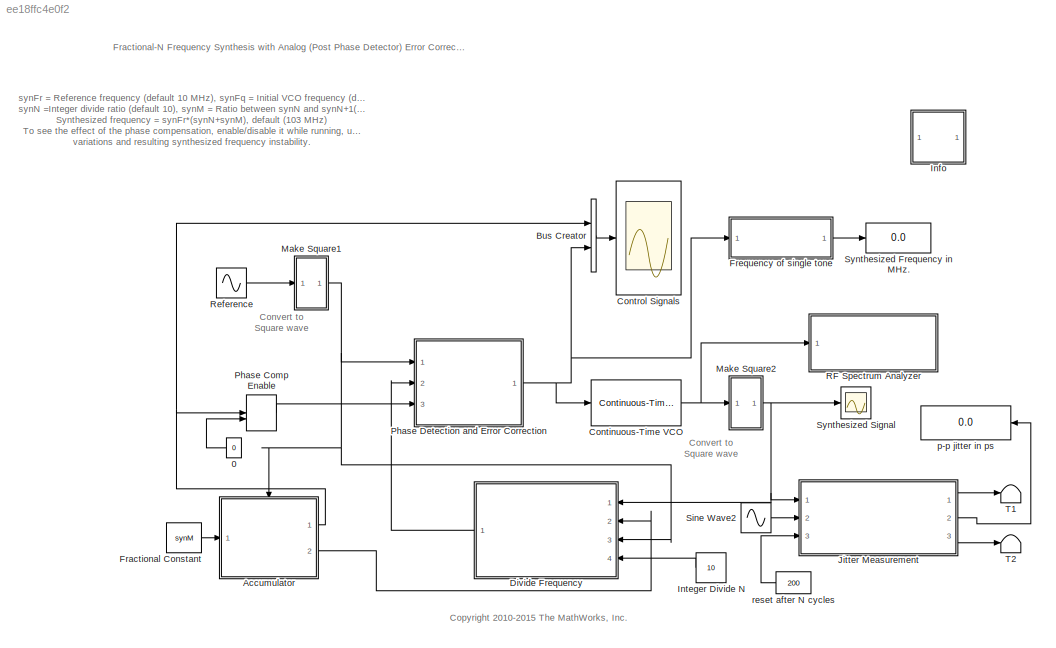
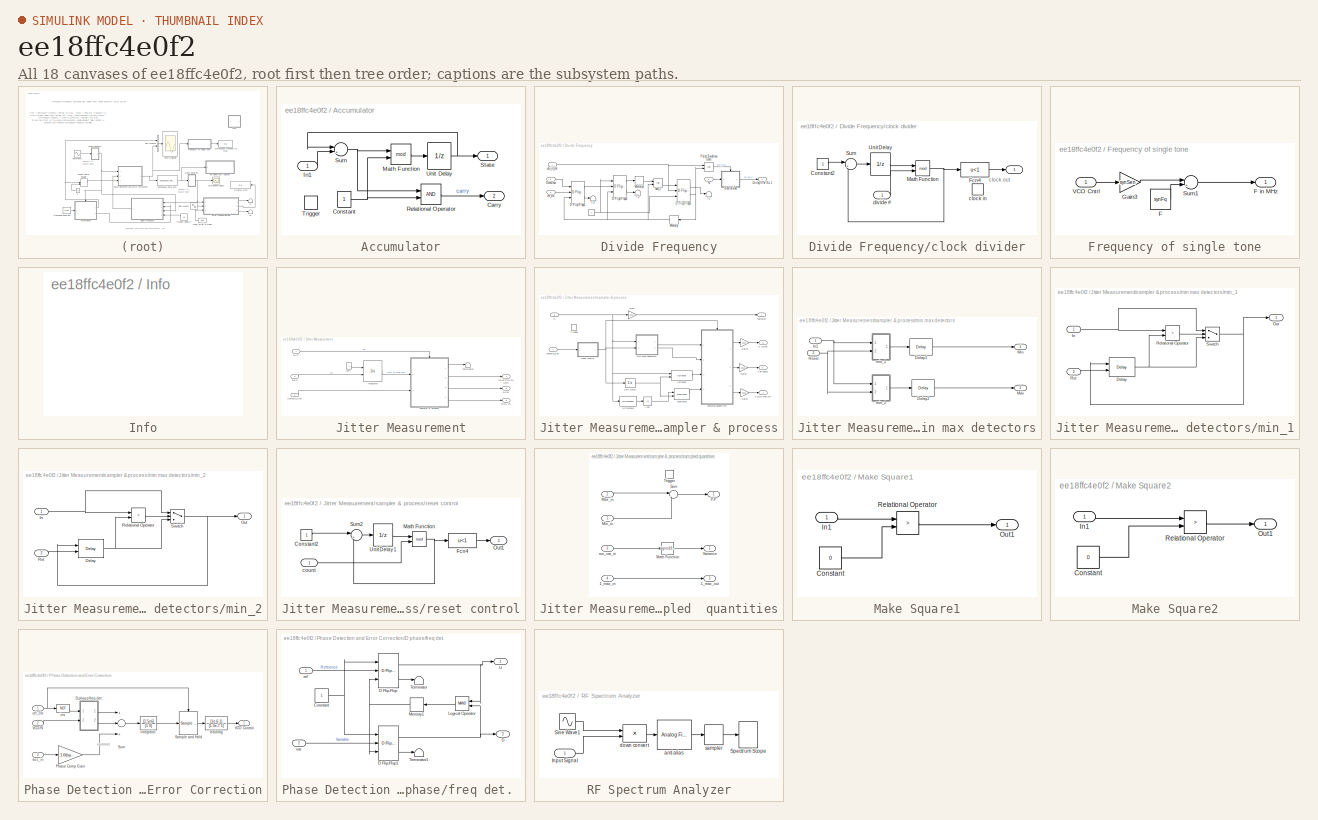
[diagram: thumbnail index - all 18 canvases of the model, root first then tree order]
MODEL slx_ee18ffc4e0f2
KIND model
CONFIG AbsTol = 1e-4
CONFIG EnableMultiTasking = on
CONFIG FixedStep = 0.001/(2.56*2*synFr)
CONFIG MaxStep = 1/(25*synFr*synN)
CONFIG MinStep = auto
CONFIG PreLoadFcn = synFr=10e6; % Reference frequency\nsynFq=90e6; % VCO quiescent frequency\nsynSen=10e6; % VCO sensitivity\nsynN=10; % Fractional factor\nsynM=.3; % Fractional factor\n\n\n\n
CONFIG RelTol = 1e-5
CONFIG SampleTimeConstraint = Unconstrained
CONFIG Solver = ode45
CONFIG SolverName = ode45
CONFIG StartTime = 0.0
CONFIG StopTime = 1.6e-5
BLOCK [Constant] 0
  Value = 0
BLOCK [SubSystem] Accumulator
  Ports = [1, 2, 0, 1]
  RequestExecContextInheritance = off
  TreatAsAtomicUnit = on
BLOCK [Outport] Accumulator/Carry
  IconDisplay = Port number
  Port = 2
BLOCK [Constant] Accumulator/Constant
BLOCK [Inport] Accumulator/In1
  IconDisplay = Port number
BLOCK [Math] Accumulator/Math Function
  Operator = mod
  Ports = [2, 1]
BLOCK [RelationalOperator] Accumulator/Relational Operator
  Ports = [2, 1]
BLOCK [Outport] Accumulator/State
  IconDisplay = Port number
  InitialOutput = 0
BLOCK [Sum] Accumulator/Sum
  IconShape = round
  Inputs = |++
  Ports = [2, 1]
BLOCK [TriggerPort] Accumulator/Trigger
  Ports = []
  VariantControl = (inherit)
BLOCK [UnitDelay] Accumulator/Unit Delay
  SampleTime = -1
BLOCK [BusCreator] Bus Creator
  DisplayOption = bar
  InheritFromInputs = on
  Inputs = 2
  Ports = [2, 1]
BLOCK [Reference] Continuous-Time VCO  REF=commsynccomp2/Continuous-Time
VCO
  Ports = [1, 1]
  SourceBlock = commsynccomp2/Continuous-Time\nVCO
  SourceProductBaseCode = CM
  SourceProductName = Communications System Toolbox
  SourceType = Continuous-Time VCO
BLOCK [Scope] Control Signals
  Floating = off
  NumInputPorts = 1
  Ports = [1]
  ScopeSpecificationString = Simulink.scopes.TimeScopeBlockCfg('CurrentConfiguration', extmgr.ConfigurationSet(extmgr.Configuration('Core','General UI',true,'FigureColor',[1 1 1]),extmgr.Configuration('Core','Source UI',true),extmgr.Configuration('Sources','WiredSimulink',true,'DataLoggingVariableName','ScopeData1','DataLoggingSaveFormat','Array','DataLoggingMaxPoints','60000','DataLoggingLimitDataPoints',true,'DataLoggingDec...<+1858ch>
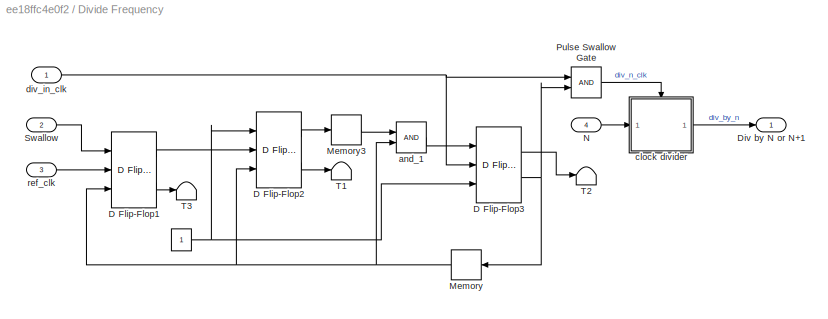
BLOCK [SubSystem] Divide Frequency
  Ports = [4, 1]
  RequestExecContextInheritance = off
BLOCK [Constant] Divide Frequency/ 
BLOCK [Reference] Divide Frequency/D Flip-Flop1  REF=simulink_extras/Flip Flops/D Flip-Flop
  Ports = [3, 2]
  SourceBlock = simulink_extras/Flip Flops/D Flip-Flop
  SourceProductBaseCode = SL
  SourceProductName = Simulink
  SourceType = DFlipFlop
BLOCK [Reference] Divide Frequency/D Flip-Flop2  REF=simulink_extras/Flip Flops/D Flip-Flop
  Ports = [3, 2]
  SourceBlock = simulink_extras/Flip Flops/D Flip-Flop
  SourceProductBaseCode = SL
  SourceProductName = Simulink
  SourceType = DFlipFlop
BLOCK [Reference] Divide Frequency/D Flip-Flop3  REF=simulink_extras/Flip Flops/D Flip-Flop
  Ports = [3, 2]
  SourceBlock = simulink_extras/Flip Flops/D Flip-Flop
  SourceProductBaseCode = SL
  SourceProductName = Simulink
  SourceType = DFlipFlop
BLOCK [Outport] Divide Frequency/Div by N or N+1
  IconDisplay = Port number
BLOCK [Memory] Divide Frequency/Memory
BLOCK [Memory] Divide Frequency/Memory3
BLOCK [Inport] Divide Frequency/N
  IconDisplay = Port number
  Port = 4
BLOCK [Logic] Divide Frequency/Pulse Swallow Gate
  Ports = [2, 1]
BLOCK [Inport] Divide Frequency/Swallow
  IconDisplay = Port number
  Port = 2
BLOCK [Terminator] Divide Frequency/T1
BLOCK [Terminator] Divide Frequency/T2
BLOCK [Terminator] Divide Frequency/T3
BLOCK [Logic] Divide Frequency/and_1
  Ports = [2, 1]
BLOCK [SubSystem] Divide Frequency/clock divider
  Ports = [1, 1, 0, 1]
  RequestExecContextInheritance = off
  TreatAsAtomicUnit = on
BLOCK [Outport] Divide Frequency/clock divider/ 
  IconDisplay = Port number
BLOCK [Constant] Divide Frequency/clock divider/Constant2
BLOCK [Fcn] Divide Frequency/clock divider/Fcn4
  Expr = u<1
BLOCK [Math] Divide Frequency/clock divider/Math Function
  Operator = mod
  Ports = [2, 1]
BLOCK [Sum] Divide Frequency/clock divider/Sum
  IconShape = round
  Inputs = |++
  Ports = [2, 1]
BLOCK [UnitDelay] Divide Frequency/clock divider/Unit Delay
  SampleTime = -1
BLOCK [TriggerPort] Divide Frequency/clock divider/clock in
  Ports = []
  VariantControl = (inherit)
BLOCK [Inport] Divide Frequency/clock divider/divide # 
  IconDisplay = Port number
BLOCK [Inport] Divide Frequency/div_in_clk
  IconDisplay = Port number
BLOCK [Inport] Divide Frequency/ref_clk
  IconDisplay = Port number
  Port = 3
BLOCK [Constant] Fractional Constant
  Value = synM
BLOCK [SubSystem] Frequency of single tone
  Ports = [1, 1]
  RequestExecContextInheritance = off
BLOCK [Constant] Frequency of single tone/F
  Value = synFq
BLOCK [Outport] Frequency of single tone/F in MHz
  IconDisplay = Port number
BLOCK [Gain] Frequency of single tone/Gain3
  Gain = synSen
BLOCK [Sum] Frequency of single tone/Sum1
  IconShape = round
  Inputs = |++
  Ports = [2, 1]
BLOCK [Inport] Frequency of single tone/VCO Cntrl
  IconDisplay = Port number
BLOCK [SubSystem] Info
  OpenFcn = web(commdhelp, '-helpbrowser');
  Ports = []
  RequestExecContextInheritance = off
BLOCK [Constant] Integer Divide N
  Value = 10
BLOCK [SubSystem] Jitter Measurement
  Ports = [3, 3]
  RequestExecContextInheritance = off
BLOCK [Inport] Jitter Measurement/DUT
  IconDisplay = Port number
BLOCK [Integrator] Jitter Measurement/Integrator
  ExternalReset = rising
  Ports = [2, 1]
BLOCK [Inport] Jitter Measurement/REF
  IconDisplay = Port number
  Port = 2
BLOCK [Outport] Jitter Measurement/RMS ps
  IconDisplay = Port number
  Port = 3
BLOCK [Inport] Jitter Measurement/Sample_Size
  IconDisplay = Port number
  Port = 3
BLOCK [Terminator] Jitter Measurement/Terminator
BLOCK [Outport] Jitter Measurement/p-p ps
  IconDisplay = Port number
  Port = 2
BLOCK [Outport] Jitter Measurement/p-p ps  cycle to cycle
  IconDisplay = Port number
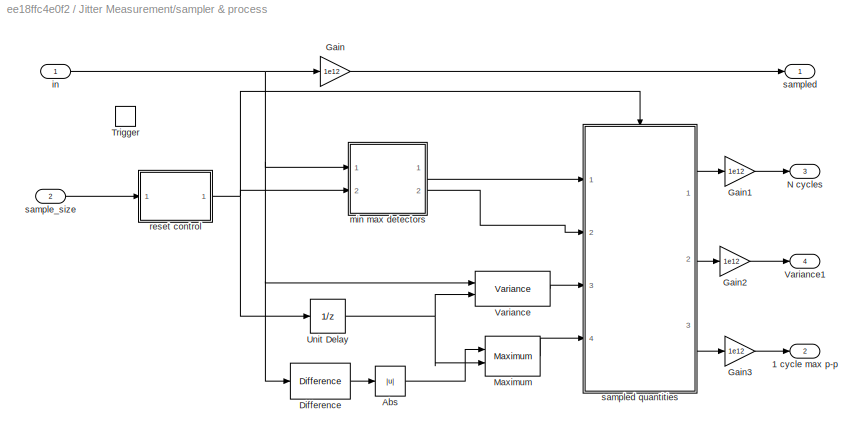
BLOCK [SubSystem] Jitter Measurement/sampler & process
  Ports = [2, 4, 0, 1]
  RequestExecContextInheritance = off
  TreatAsAtomicUnit = on
BLOCK [Outport] Jitter Measurement/sampler & process/1 cycle max p-p
  IconDisplay = Port number
  Port = 2
BLOCK [Abs] Jitter Measurement/sampler & process/Abs
  SaturateOnIntegerOverflow = off
BLOCK [Reference] Jitter Measurement/sampler & process/Difference  REF=simulink/Discrete/Difference
  Ports = [1, 1]
  SourceBlock = simulink/Discrete/Difference
  SourceProductBaseCode = SL
  SourceProductName = Simulink
  SourceType = Difference
BLOCK [Gain] Jitter Measurement/sampler & process/Gain
  Gain = 1e12
  OutDataTypeStr = Inherit: Inherit via internal rule
  ParamDataTypeStr = Inherit: Inherit via internal rule
  SaturateOnIntegerOverflow = off
BLOCK [Gain] Jitter Measurement/sampler & process/Gain1
  Gain = 1e12
  OutDataTypeStr = Inherit: Inherit via internal rule
  ParamDataTypeStr = Inherit: Inherit via internal rule
  SaturateOnIntegerOverflow = off
BLOCK [Gain] Jitter Measurement/sampler & process/Gain2
  Gain = 1e12
  OutDataTypeStr = Inherit: Inherit via internal rule
  ParamDataTypeStr = Inherit: Inherit via internal rule
  SaturateOnIntegerOverflow = off
BLOCK [Gain] Jitter Measurement/sampler & process/Gain3
  Gain = 1e12
  OutDataTypeStr = Inherit: Inherit via internal rule
  ParamDataTypeStr = Inherit: Inherit via internal rule
  SaturateOnIntegerOverflow = off
BLOCK [Reference] Jitter Measurement/sampler & process/Maximum  REF=dspstat3/Maximum
  Ports = [2, 1]
  SourceBlock = dspstat3/Maximum
  SourceProductBaseCode = DS
  SourceProductName = DSP System Toolbox
  SourceType = Maximum
  UserDataPersistent = on
BLOCK [Outport] Jitter Measurement/sampler & process/N cycles
  IconDisplay = Port number
  Port = 3
BLOCK [TriggerPort] Jitter Measurement/sampler & process/Trigger
  Ports = []
  VariantControl = (inherit)
BLOCK [UnitDelay] Jitter Measurement/sampler & process/Unit Delay
  SampleTime = -1
BLOCK [Reference] Jitter Measurement/sampler & process/Variance  REF=dspstat3/Variance
  Ports = [2, 1]
  SourceBlock = dspstat3/Variance
  SourceProductBaseCode = DS
  SourceProductName = DSP System Toolbox
  SourceType = Variance
  UserDataPersistent = on
BLOCK [Outport] Jitter Measurement/sampler & process/Variance1
  IconDisplay = Port number
  Port = 4
BLOCK [Inport] Jitter Measurement/sampler & process/in
  IconDisplay = Port number
BLOCK [SubSystem] Jitter Measurement/sampler & process/min max detectors
  Ports = [2, 2]
  RequestExecContextInheritance = off
BLOCK [Delay] Jitter Measurement/sampler & process/min max detectors/Delay1
  DelayLength = 1
  InitialCondition = 0
  InputPortMap = u0
  Ports = [1, 1]
  UseCircularBuffer = on
  UserDataPersistent = on
BLOCK [Delay] Jitter Measurement/sampler & process/min max detectors/Delay2
  DelayLength = 1
  InitialCondition = 0
  InputPortMap = u0
  Ports = [1, 1]
  UseCircularBuffer = on
  UserDataPersistent = on
BLOCK [Inport] Jitter Measurement/sampler & process/min max detectors/In1
  IconDisplay = Port number
BLOCK [Outport] Jitter Measurement/sampler & process/min max detectors/Max
  IconDisplay = Port number
  Port = 2
BLOCK [Outport] Jitter Measurement/sampler & process/min max detectors/Min
  IconDisplay = Port number
BLOCK [Inport] Jitter Measurement/sampler & process/min max detectors/Reset
  IconDisplay = Port number
  Port = 2
BLOCK [SubSystem] Jitter Measurement/sampler & process/min max detectors/min_1
  Ports = [2, 1]
  RequestExecContextInheritance = off
BLOCK [Reference] Jitter Measurement/sampler & process/min max detectors/min_1/Delay  REF=dspobslib/Delay
  Ports = [2, 1]
  SourceBlock = dspobslib/Delay
  SourceProductBaseCode = DS
  SourceProductName = DSP System Toolbox
  SourceType = Delay
  UserDataPersistent = on
BLOCK [Inport] Jitter Measurement/sampler & process/min max detectors/min_1/In
  IconDisplay = Port number
BLOCK [Outport] Jitter Measurement/sampler & process/min max detectors/min_1/Out
  IconDisplay = Port number
BLOCK [RelationalOperator] Jitter Measurement/sampler & process/min max detectors/min_1/Relational Operator
  InputSameDT = off
  Operator = <
  OutDataTypeStr = boolean
  Ports = [2, 1]
BLOCK [Inport] Jitter Measurement/sampler & process/min max detectors/min_1/Rst
  IconDisplay = Port number
  Port = 2
BLOCK [Switch] Jitter Measurement/sampler & process/min max detectors/min_1/Switch
  InputSameDT = off
  SaturateOnIntegerOverflow = off
  Threshold = .5
BLOCK [SubSystem] Jitter Measurement/sampler & process/min max detectors/min_2
  Ports = [2, 1]
  RequestExecContextInheritance = off
BLOCK [Reference] Jitter Measurement/sampler & process/min max detectors/min_2/Delay  REF=dspobslib/Delay
  Ports = [2, 1]
  SourceBlock = dspobslib/Delay
  SourceProductBaseCode = DS
  SourceProductName = DSP System Toolbox
  SourceType = Delay
  UserDataPersistent = on
BLOCK [Inport] Jitter Measurement/sampler & process/min max detectors/min_2/In
  IconDisplay = Port number
BLOCK [Outport] Jitter Measurement/sampler & process/min max detectors/min_2/Out
  IconDisplay = Port number
BLOCK [RelationalOperator] Jitter Measurement/sampler & process/min max detectors/min_2/Relational Operator
  InputSameDT = off
  Operator = >
  OutDataTypeStr = boolean
  Ports = [2, 1]
BLOCK [Inport] Jitter Measurement/sampler & process/min max detectors/min_2/Rst
  IconDisplay = Port number
  Port = 2
BLOCK [Switch] Jitter Measurement/sampler & process/min max detectors/min_2/Switch
  InputSameDT = off
  SaturateOnIntegerOverflow = off
  Threshold = .5
BLOCK [SubSystem] Jitter Measurement/sampler & process/reset control
  Ports = [1, 1]
  RequestExecContextInheritance = off
BLOCK [Constant] Jitter Measurement/sampler & process/reset control/Constant2
BLOCK [Fcn] Jitter Measurement/sampler & process/reset control/Fcn4
  Expr = u<1
BLOCK [Math] Jitter Measurement/sampler & process/reset control/Math Function
  Operator = mod
  Ports = [2, 1]
BLOCK [Outport] Jitter Measurement/sampler & process/reset control/Out1
  IconDisplay = Port number
BLOCK [Sum] Jitter Measurement/sampler & process/reset control/Sum2
  IconShape = round
  Inputs = |++
  Ports = [2, 1]
BLOCK [UnitDelay] Jitter Measurement/sampler & process/reset control/Unit Delay1
  SampleTime = -1
BLOCK [Inport] Jitter Measurement/sampler & process/reset control/count
  IconDisplay = Port number
BLOCK [Inport] Jitter Measurement/sampler & process/sample_size
  IconDisplay = Port number
  Port = 2
BLOCK [Outport] Jitter Measurement/sampler & process/sampled
  IconDisplay = Port number
BLOCK [SubSystem] Jitter Measurement/sampler & process/sampled  quantities
  Ports = [4, 3, 0, 1]
  RequestExecContextInheritance = off
  TreatAsAtomicUnit = on
BLOCK [Inport] Jitter Measurement/sampler & process/sampled  quantities/1_max_in
  IconDisplay = Port number
  Port = 4
BLOCK [Outport] Jitter Measurement/sampler & process/sampled  quantities/1_max_out
  IconDisplay = Port number
  Port = 3
BLOCK [Sqrt] Jitter Measurement/sampler & process/sampled  quantities/Math Function
  AlgorithmType = Newton-Raphson
  Operator = signedSqrt
BLOCK [Inport] Jitter Measurement/sampler & process/sampled  quantities/Max_in
  IconDisplay = Port number
  Port = 2
BLOCK [Inport] Jitter Measurement/sampler & process/sampled  quantities/Min_in
  IconDisplay = Port number
BLOCK [Outport] Jitter Measurement/sampler & process/sampled  quantities/P-P
  IconDisplay = Port number
BLOCK [Sum] Jitter Measurement/sampler & process/sampled  quantities/Sum
  IconShape = round
  Inputs = |+-
  Ports = [2, 1]
BLOCK [TriggerPort] Jitter Measurement/sampler & process/sampled  quantities/Trigger
  Ports = []
  VariantControl = (inherit)
BLOCK [Outport] Jitter Measurement/sampler & process/sampled  quantities/Variance
  IconDisplay = Port number
  Port = 2
BLOCK [Inport] Jitter Measurement/sampler & process/sampled  quantities/run_var_in
  IconDisplay = Port number
  Port = 3
BLOCK [Constant] Jitter Measurement/unity
  OutDataTypeStr = double
BLOCK [SubSystem] Make Square1
  Ports = [1, 1]
  RequestExecContextInheritance = off
BLOCK [Constant] Make Square1/Constant
  Value = 0
BLOCK [Inport] Make Square1/In1
  IconDisplay = Port number
BLOCK [Outport] Make Square1/Out1
  IconDisplay = Port number
BLOCK [RelationalOperator] Make Square1/Relational Operator
  Operator = >
  Ports = [2, 1]
BLOCK [SubSystem] Make Square2
  Ports = [1, 1]
  RequestExecContextInheritance = off
BLOCK [Constant] Make Square2/Constant
  Value = 0
BLOCK [Inport] Make Square2/In1
  IconDisplay = Port number
BLOCK [Outport] Make Square2/Out1
  IconDisplay = Port number
BLOCK [RelationalOperator] Make Square2/Relational Operator
  Operator = >
  Ports = [2, 1]
BLOCK [ManualSwitch] Phase Comp Enable
BLOCK [SubSystem] Phase Detection and Error Correction
  Ports = [3, 1]
  RequestExecContextInheritance = off
BLOCK [SubSystem] Phase Detection and Error Correction/D phase//freq det. 
  Ports = [2, 2]
  RequestExecContextInheritance = off
BLOCK [Constant] Phase Detection and Error Correction/D phase//freq det. /Constant
BLOCK [Outport] Phase Detection and Error Correction/D phase//freq det. /D
  IconDisplay = Port number
  Port = 2
BLOCK [Reference] Phase Detection and Error Correction/D phase//freq det. /D Flip-Flop  REF=simulink_extras/Flip Flops/D Flip-Flop
  Ports = [3, 2]
  SourceBlock = simulink_extras/Flip Flops/D Flip-Flop
  SourceProductBaseCode = SL
  SourceProductName = Simulink
  SourceType = DFlipFlop
BLOCK [Reference] Phase Detection and Error Correction/D phase//freq det. /D Flip-Flop1  REF=simulink_extras/Flip Flops/D Flip-Flop
  Ports = [3, 2]
  SourceBlock = simulink_extras/Flip Flops/D Flip-Flop
  SourceProductBaseCode = SL
  SourceProductName = Simulink
  SourceType = DFlipFlop
BLOCK [Logic] Phase Detection and Error Correction/D phase//freq det. /Logical Operator
  Operator = NAND
  Ports = [2, 1]
BLOCK [Memory] Phase Detection and Error Correction/D phase//freq det. /Memory1
BLOCK [Terminator] Phase Detection and Error Correction/D phase//freq det. /Terminator
BLOCK [Terminator] Phase Detection and Error Correction/D phase//freq det. /Terminator1
BLOCK [Outport] Phase Detection and Error Correction/D phase//freq det. /U
  IconDisplay = Port number
BLOCK [Inport] Phase Detection and Error Correction/D phase//freq det. /ref
  IconDisplay = Port number
BLOCK [Inport] Phase Detection and Error Correction/D phase//freq det. /var
  IconDisplay = Port number
  Port = 2
BLOCK [Gain] Phase Detection and Error Correction/Phase Comp Gain
  Gain = 1.0/(synM+synN)
BLOCK [Reference] Phase Detection and Error Correction/Sample and Hold  REF=dspsigops/Sample
and Hold
  Ports = [1, 1, 0, 1]
  SourceBlock = dspsigops/Sample\nand Hold
  SourceProductBaseCode = DS
  SourceProductName = DSP System Toolbox
  SourceType = Sample and Hold
BLOCK [Sum] Phase Detection and Error Correction/Sum
  Inputs = +-+
  Ports = [3, 1]
BLOCK [Outport] Phase Detection and Error Correction/VCO Control
  IconDisplay = Port number
BLOCK [Inport] Phase Detection and Error Correction/VCO//N
  IconDisplay = Port number
  Port = 2
BLOCK [Inport] Phase Detection and Error Correction/acc_in 
  IconDisplay = Port number
  Port = 3
BLOCK [TransferFcn] Phase Detection and Error Correction/integrator
  Denominator = [1 0]
  Numerator = [2.5e6]
BLOCK [Logic] Phase Detection and Error Correction/inv
  Operator = NOT
  Ports = [1, 1]
BLOCK [TransferFcn] Phase Detection and Error Correction/lead//lag
  Denominator = [1.3e-7 1]
  Numerator = [1e-6 1]
BLOCK [Inport] Phase Detection and Error Correction/ref_clk
  IconDisplay = Port number
BLOCK [SubSystem] RF Spectrum Analyzer
  Description = Spectrum Analyzer
  Ports = [1]
  RequestExecContextInheritance = off
BLOCK [Inport] RF Spectrum Analyzer/Input Signal
  IconDisplay = Port number
BLOCK [Sin] RF Spectrum Analyzer/Sine Wave1
  Amplitude = 1/3.6
  Frequency = 2*pi*(Fc-BW/2)
  Phase = -pi/2
  Ports = [0, 1]
  SampleTime = 0
BLOCK [SpectrumAnalyzer] RF Spectrum Analyzer/Spectrum Scope
  Ports = [1]
  ScopeSpecificationString = spbscopes.SpectrumAnalyzerBlockCfg('CurrentConfiguration', extmgr.ConfigurationSet(extmgr.Configuration('Core','General UI',true,'FigureColor',[1 1 1]),extmgr.Configuration('Core','Source UI',true),extmgr.Configuration('Sources','WiredSimulink',true),extmgr.Configuration('Visuals','Spectrum',true,'AxesProperties',struct('Color',{[1 1 1],[1 1 1]},'XColor',{[0 0 0],[0 0 0]},'YColor',{[0 0 0],[0 0 0]...<+2062ch>
BLOCK [Reference] RF Spectrum Analyzer/anti alias  REF=dsparch4/Analog
Filter Design
  Ports = [1, 1]
  SourceBlock = dsparch4/Analog\nFilter Design
  SourceProductBaseCode = DS
  SourceProductName = DSP System Toolbox
  SourceType = Analog Filter Design
BLOCK [Product] RF Spectrum Analyzer/down convert
  Ports = [2, 1]
  RndMeth = Floor
BLOCK [ZeroOrderHold] RF Spectrum Analyzer/sampler
  SampleTime = 1/(2.56*BW)
BLOCK [Sin] Reference
  Frequency = 2*pi*synFr
  Phase = pi
  Ports = [0, 1]
  SampleTime = 0
BLOCK [Sin] Sine Wave2
  Frequency = 2*pi*synFr*(synN+synM)
  Ports = [0, 1]
  SampleTime = 0
BLOCK [Display] Synthesized Frequency in MHz.
  Decimation = 401
  Ports = [1]
BLOCK [Scope] Synthesized Signal
  Floating = off
  NumInputPorts = 1
  Ports = [1]
  ScopeSpecificationString = Simulink.scopes.TimeScopeBlockCfg('CurrentConfiguration', extmgr.ConfigurationSet(extmgr.Configuration('Core','General UI',true,'FigureColor',[1 1 1]),extmgr.Configuration('Core','Source UI',true),extmgr.Configuration('Sources','WiredSimulink',true,'DataLoggingSaveFormat','Array','DataLoggingMaxPoints','500','DataLoggingLimitDataPoints',true,'DataLoggingDecimation','1'),extmgr.Configuration('Visua...<+1904ch>
BLOCK [Terminator] T1
BLOCK [Terminator] T2
BLOCK [Display] p-p jitter in ps
  Decimation = 1
  Ports = [1]
BLOCK [Constant] reset after N cycles
  Value = 200
  VectorParams1D = off
ANNOTATION (root): Convert to Square wave
ANNOTATION (root): <copyright redacted>
ANNOTATION (root): Fractional-N Frequency Synthesis with Analog (Post Phase Detector) Error Correction
ANNOTATION (root): synFr = Reference frequency (default 10 MHz), synFq = Initial VCO frequency (default 90 MHz) synN =Integer divide ratio (default 10), synM = Ratio between synN and synN+1(default 0.3) , Synthesized frequency = synFr*(synN+synM), default (103 MHz) To see the effect of the phase compensation, enable/disable it while running, using the manual switch, and note the VCO control variations and resulting ...<+34ch>
ANNOTATION Divide Frequency/clock divider: clock out
ANNOTATION Phase Detection and Error Correction: summer
LINE 0:1 -> Phase Comp Enable:2
NET Accumulator/Constant:1 -> Accumulator/Math Function:2, Accumulator/Relational Operator:2
LINE Accumulator/In1:1 -> Accumulator/Sum:2
LINE Accumulator/Math Function:1 -> Accumulator/Unit Delay:1
LINE Accumulator/Relational Operator:1 -> Accumulator/Carry:1
NET Accumulator/Sum:1 -> Accumulator/Math Function:1, Accumulator/Relational Operator:1
NET Accumulator/Unit Delay:1 -> Accumulator/State:1, Accumulator/Sum:1
NET Accumulator:1 -> Bus Creator:1, Phase Comp Enable:1
LINE Accumulator:2 -> Divide Frequency:2
LINE Bus Creator:1 -> Control Signals:1
NET Continuous-Time VCO:1 -> Make Square2:1, RF Spectrum Analyzer:1
NET Divide Frequency/ :1 -> Divide Frequency/D Flip-Flop2:1, Divide Frequency/D Flip-Flop3:3
LINE Divide Frequency/D Flip-Flop1:1 -> Divide Frequency/D Flip-Flop2:2
LINE Divide Frequency/D Flip-Flop1:2 -> Divide Frequency/T3:1
LINE Divide Frequency/D Flip-Flop2:1 -> Divide Frequency/Memory3:1
LINE Divide Frequency/D Flip-Flop2:2 -> Divide Frequency/T1:1
LINE Divide Frequency/D Flip-Flop3:1 -> Divide Frequency/T2:1
NET Divide Frequency/D Flip-Flop3:2 -> Divide Frequency/Memory:1, Divide Frequency/Pulse Swallow Gate:2
LINE Divide Frequency/Memory3:1 -> Divide Frequency/and_1:1
NET Divide Frequency/Memory:1 -> Divide Frequency/D Flip-Flop1:3, Divide Frequency/D Flip-Flop2:3, Divide Frequency/and_1:2
LINE Divide Frequency/N:1 -> Divide Frequency/clock divider:1
LINE Divide Frequency/Pulse Swallow Gate:1 -> Divide Frequency/clock divider:trigger
LINE Divide Frequency/Swallow:1 -> Divide Frequency/D Flip-Flop1:1
LINE Divide Frequency/and_1:1 -> Divide Frequency/D Flip-Flop3:1
LINE Divide Frequency/clock divider/Constant2:1 -> Divide Frequency/clock divider/Sum:1
LINE Divide Frequency/clock divider/Fcn4:1 -> Divide Frequency/clock divider/ :1
NET Divide Frequency/clock divider/Math Function:1 -> Divide Frequency/clock divider/Fcn4:1, Divide Frequency/clock divider/Sum:2
LINE Divide Frequency/clock divider/Sum:1 -> Divide Frequency/clock divider/Unit Delay:1
LINE Divide Frequency/clock divider/Unit Delay:1 -> Divide Frequency/clock divider/Math Function:1
LINE Divide Frequency/clock divider/divide # :1 -> Divide Frequency/clock divider/Math Function:2
LINE Divide Frequency/clock divider:1 -> Divide Frequency/Div by N or N+1:1
NET Divide Frequency/div_in_clk:1 -> Divide Frequency/D Flip-Flop3:2, Divide Frequency/Pulse Swallow Gate:1
LINE Divide Frequency/ref_clk:1 -> Divide Frequency/D Flip-Flop1:2
LINE Divide Frequency:1 -> Phase Detection and Error Correction:2
LINE Fractional Constant:1 -> Accumulator:1
LINE Frequency of single tone/F:1 -> Frequency of single tone/Sum1:2
LINE Frequency of single tone/Gain3:1 -> Frequency of single tone/Sum1:1
LINE Frequency of single tone/Sum1:1 -> Frequency of single tone/F in MHz:1
LINE Frequency of single tone/VCO Cntrl:1 -> Frequency of single tone/Gain3:1
LINE Frequency of single tone:1 -> Synthesized Frequency in MHz.:1
LINE Integer Divide N:1 -> Divide Frequency:4
LINE Jitter Measurement/DUT:1 -> Jitter Measurement/sampler & process:trigger
LINE Jitter Measurement/Integrator:1 -> Jitter Measurement/sampler & process:1
LINE Jitter Measurement/REF:1 -> Jitter Measurement/Integrator:2
LINE Jitter Measurement/Sample_Size:1 -> Jitter Measurement/sampler & process:2
LINE Jitter Measurement/sampler & process/Abs:1 -> Jitter Measurement/sampler & process/Maximum:1
LINE Jitter Measurement/sampler & process/Difference:1 -> Jitter Measurement/sampler & process/Abs:1
LINE Jitter Measurement/sampler & process/Gain1:1 -> Jitter Measurement/sampler & process/N cycles:1
LINE Jitter Measurement/sampler & process/Gain2:1 -> Jitter Measurement/sampler & process/Variance1:1
LINE Jitter Measurement/sampler & process/Gain3:1 -> Jitter Measurement/sampler & process/1 cycle max p-p:1
LINE Jitter Measurement/sampler & process/Gain:1 -> Jitter Measurement/sampler & process/sampled:1
LINE Jitter Measurement/sampler & process/Maximum:1 -> Jitter Measurement/sampler & process/sampled  quantities:4
NET Jitter Measurement/sampler & process/Unit Delay:1 -> Jitter Measurement/sampler & process/Maximum:2, Jitter Measurement/sampler & process/Variance:2
LINE Jitter Measurement/sampler & process/Variance:1 -> Jitter Measurement/sampler & process/sampled  quantities:3
NET Jitter Measurement/sampler & process/in:1 -> Jitter Measurement/sampler & process/Difference:1, Jitter Measurement/sampler & process/Gain:1, Jitter Measurement/sampler & process/Variance:1, Jitter Measurement/sampler & process/min max detectors:1
LINE Jitter Measurement/sampler & process/min max detectors/Delay1:1 -> Jitter Measurement/sampler & process/min max detectors/Min:1
LINE Jitter Measurement/sampler & process/min max detectors/Delay2:1 -> Jitter Measurement/sampler & process/min max detectors/Max:1
NET Jitter Measurement/sampler & process/min max detectors/In1:1 -> Jitter Measurement/sampler & process/min max detectors/min_1:1, Jitter Measurement/sampler & process/min max detectors/min_2:1
NET Jitter Measurement/sampler & process/min max detectors/Reset:1 -> Jitter Measurement/sampler & process/min max detectors/min_1:2, Jitter Measurement/sampler & process/min max detectors/min_2:2
NET Jitter Measurement/sampler & process/min max detectors/min_1/Delay:1 -> Jitter Measurement/sampler & process/min max detectors/min_1/Relational Operator:2, Jitter Measurement/sampler & process/min max detectors/min_1/Switch:3
NET Jitter Measurement/sampler & process/min max detectors/min_1/In:1 -> Jitter Measurement/sampler & process/min max detectors/min_1/Relational Operator:1, Jitter Measurement/sampler & process/min max detectors/min_1/Switch:1
LINE Jitter Measurement/sampler & process/min max detectors/min_1/Relational Operator:1 -> Jitter Measurement/sampler & process/min max detectors/min_1/Switch:2
LINE Jitter Measurement/sampler & process/min max detectors/min_1/Rst:1 -> Jitter Measurement/sampler & process/min max detectors/min_1/Delay:2
NET Jitter Measurement/sampler & process/min max detectors/min_1/Switch:1 -> Jitter Measurement/sampler & process/min max detectors/min_1/Delay:1, Jitter Measurement/sampler & process/min max detectors/min_1/Out:1
LINE Jitter Measurement/sampler & process/min max detectors/min_1:1 -> Jitter Measurement/sampler & process/min max detectors/Delay1:1
NET Jitter Measurement/sampler & process/min max detectors/min_2/Delay:1 -> Jitter Measurement/sampler & process/min max detectors/min_2/Relational Operator:2, Jitter Measurement/sampler & process/min max detectors/min_2/Switch:3
NET Jitter Measurement/sampler & process/min max detectors/min_2/In:1 -> Jitter Measurement/sampler & process/min max detectors/min_2/Relational Operator:1, Jitter Measurement/sampler & process/min max detectors/min_2/Switch:1
LINE Jitter Measurement/sampler & process/min max detectors/min_2/Relational Operator:1 -> Jitter Measurement/sampler & process/min max detectors/min_2/Switch:2
LINE Jitter Measurement/sampler & process/min max detectors/min_2/Rst:1 -> Jitter Measurement/sampler & process/min max detectors/min_2/Delay:2
NET Jitter Measurement/sampler & process/min max detectors/min_2/Switch:1 -> Jitter Measurement/sampler & process/min max detectors/min_2/Delay:1, Jitter Measurement/sampler & process/min max detectors/min_2/Out:1
LINE Jitter Measurement/sampler & process/min max detectors/min_2:1 -> Jitter Measurement/sampler & process/min max detectors/Delay2:1
LINE Jitter Measurement/sampler & process/min max detectors:1 -> Jitter Measurement/sampler & process/sampled  quantities:1
LINE Jitter Measurement/sampler & process/min max detectors:2 -> Jitter Measurement/sampler & process/sampled  quantities:2
LINE Jitter Measurement/sampler & process/reset control/Constant2:1 -> Jitter Measurement/sampler & process/reset control/Sum2:1
LINE Jitter Measurement/sampler & process/reset control/Fcn4:1 -> Jitter Measurement/sampler & process/reset control/Out1:1
NET Jitter Measurement/sampler & process/reset control/Math Function:1 -> Jitter Measurement/sampler & process/reset control/Fcn4:1, Jitter Measurement/sampler & process/reset control/Sum2:2
LINE Jitter Measurement/sampler & process/reset control/Sum2:1 -> Jitter Measurement/sampler & process/reset control/Unit Delay1:1
LINE Jitter Measurement/sampler & process/reset control/Unit Delay1:1 -> Jitter Measurement/sampler & process/reset control/Math Function:1
LINE Jitter Measurement/sampler & process/reset control/count:1 -> Jitter Measurement/sampler & process/reset control/Math Function:2
NET Jitter Measurement/sampler & process/reset control:1 -> Jitter Measurement/sampler & process/Unit Delay:1, Jitter Measurement/sampler & process/min max detectors:2, Jitter Measurement/sampler & process/sampled  quantities:trigger
LINE Jitter Measurement/sampler & process/sample_size:1 -> Jitter Measurement/sampler & process/reset control:1
LINE Jitter Measurement/sampler & process/sampled  quantities/1_max_in:1 -> Jitter Measurement/sampler & process/sampled  quantities/1_max_out:1
LINE Jitter Measurement/sampler & process/sampled  quantities/Math Function:1 -> Jitter Measurement/sampler & process/sampled  quantities/Variance:1
LINE Jitter Measurement/sampler & process/sampled  quantities/Max_in:1 -> Jitter Measurement/sampler & process/sampled  quantities/Sum:1
LINE Jitter Measurement/sampler & process/sampled  quantities/Min_in:1 -> Jitter Measurement/sampler & process/sampled  quantities/Sum:2
LINE Jitter Measurement/sampler & process/sampled  quantities/Sum:1 -> Jitter Measurement/sampler & process/sampled  quantities/P-P:1
LINE Jitter Measurement/sampler & process/sampled  quantities/run_var_in:1 -> Jitter Measurement/sampler & process/sampled  quantities/Math Function:1
LINE Jitter Measurement/sampler & process/sampled  quantities:1 -> Jitter Measurement/sampler & process/Gain1:1
LINE Jitter Measurement/sampler & process/sampled  quantities:2 -> Jitter Measurement/sampler & process/Gain2:1
LINE Jitter Measurement/sampler & process/sampled  quantities:3 -> Jitter Measurement/sampler & process/Gain3:1
LINE Jitter Measurement/sampler & process:1 -> Jitter Measurement/Terminator:1
LINE Jitter Measurement/sampler & process:2 -> Jitter Measurement/p-p ps  cycle to cycle:1
LINE Jitter Measurement/sampler & process:3 -> Jitter Measurement/p-p ps:1
LINE Jitter Measurement/sampler & process:4 -> Jitter Measurement/RMS ps:1
LINE Jitter Measurement/unity:1 -> Jitter Measurement/Integrator:1
LINE Jitter Measurement:1 -> T1:1
LINE Jitter Measurement:2 -> p-p jitter in ps:1
LINE Jitter Measurement:3 -> T2:1
LINE Make Square1/Constant:1 -> Make Square1/Relational Operator:2
LINE Make Square1/In1:1 -> Make Square1/Relational Operator:1
LINE Make Square1/Relational Operator:1 -> Make Square1/Out1:1
NET Make Square1:1 -> Accumulator:trigger, Divide Frequency:3, Phase Detection and Error Correction:1
LINE Make Square2/Constant:1 -> Make Square2/Relational Operator:2
LINE Make Square2/In1:1 -> Make Square2/Relational Operator:1
LINE Make Square2/Relational Operator:1 -> Make Square2/Out1:1
NET Make Square2:1 -> Divide Frequency:1, Jitter Measurement:1, Synthesized Signal:1
LINE Phase Comp Enable:1 -> Phase Detection and Error Correction:3
NET Phase Detection and Error Correction/D phase//freq det. /Constant:1 -> Phase Detection and Error Correction/D phase//freq det. /D Flip-Flop1:1, Phase Detection and Error Correction/D phase//freq det. /D Flip-Flop:1
NET Phase Detection and Error Correction/D phase//freq det. /D Flip-Flop1:1 -> Phase Detection and Error Correction/D phase//freq det. /D:1, Phase Detection and Error Correction/D phase//freq det. /Logical Operator:2
LINE Phase Detection and Error Correction/D phase//freq det. /D Flip-Flop1:2 -> Phase Detection and Error Correction/D phase//freq det. /Terminator1:1
NET Phase Detection and Error Correction/D phase//freq det. /D Flip-Flop:1 -> Phase Detection and Error Correction/D phase//freq det. /Logical Operator:1, Phase Detection and Error Correction/D phase//freq det. /U:1
LINE Phase Detection and Error Correction/D phase//freq det. /D Flip-Flop:2 -> Phase Detection and Error Correction/D phase//freq det. /Terminator:1
LINE Phase Detection and Error Correction/D phase//freq det. /Logical Operator:1 -> Phase Detection and Error Correction/D phase//freq det. /Memory1:1
NET Phase Detection and Error Correction/D phase//freq det. /Memory1:1 -> Phase Detection and Error Correction/D phase//freq det. /D Flip-Flop1:3, Phase Detection and Error Correction/D phase//freq det. /D Flip-Flop:3
LINE Phase Detection and Error Correction/D phase//freq det. /ref:1 -> Phase Detection and Error Correction/D phase//freq det. /D Flip-Flop:2
LINE Phase Detection and Error Correction/D phase//freq det. /var:1 -> Phase Detection and Error Correction/D phase//freq det. /D Flip-Flop1:2
LINE Phase Detection and Error Correction/D phase//freq det. :1 -> Phase Detection and Error Correction/Sum:1
LINE Phase Detection and Error Correction/D phase//freq det. :2 -> Phase Detection and Error Correction/Sum:2
LINE Phase Detection and Error Correction/Phase Comp Gain:1 -> Phase Detection and Error Correction/Sum:3
LINE Phase Detection and Error Correction/Sample and Hold:1 -> Phase Detection and Error Correction/lead//lag:1
LINE Phase Detection and Error Correction/Sum:1 -> Phase Detection and Error Correction/integrator:1
LINE Phase Detection and Error Correction/VCO//N:1 -> Phase Detection and Error Correction/D phase//freq det. :2
LINE Phase Detection and Error Correction/acc_in :1 -> Phase Detection and Error Correction/Phase Comp Gain:1
LINE Phase Detection and Error Correction/integrator:1 -> Phase Detection and Error Correction/Sample and Hold:1
LINE Phase Detection and Error Correction/inv:1 -> Phase Detection and Error Correction/D phase//freq det. :1
LINE Phase Detection and Error Correction/lead//lag:1 -> Phase Detection and Error Correction/VCO Control:1
NET Phase Detection and Error Correction/ref_clk:1 -> Phase Detection and Error Correction/Sample and Hold:trigger, Phase Detection and Error Correction/inv:1
NET Phase Detection and Error Correction:1 -> Bus Creator:2, Continuous-Time VCO:1, Frequency of single tone:1
LINE RF Spectrum Analyzer/Input Signal:1 -> RF Spectrum Analyzer/down convert:2
LINE RF Spectrum Analyzer/Sine Wave1:1 -> RF Spectrum Analyzer/down convert:1
LINE RF Spectrum Analyzer/anti alias:1 -> RF Spectrum Analyzer/sampler:1
LINE RF Spectrum Analyzer/down convert:1 -> RF Spectrum Analyzer/anti alias:1
LINE RF Spectrum Analyzer/sampler:1 -> RF Spectrum Analyzer/Spectrum Scope:1
LINE Reference:1 -> Make Square1:1
LINE Sine Wave2:1 -> Jitter Measurement:2
LINE reset after N cycles:1 -> Jitter Measurement:3
note: NET lines group one-source signal fan-out (src -> all destinations, sorted); 1:1 wires keep LINE
